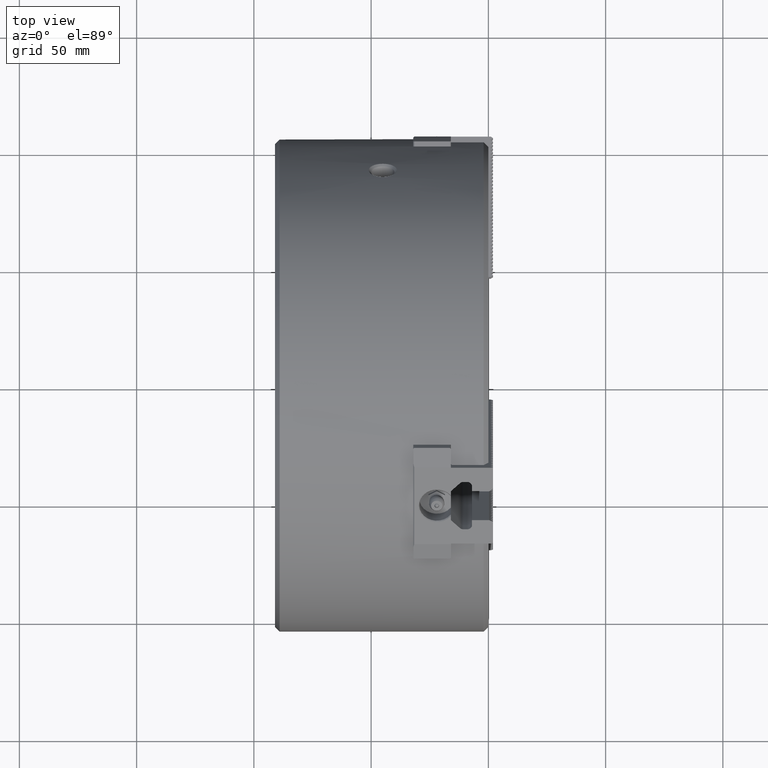
[diagram: clean part render]
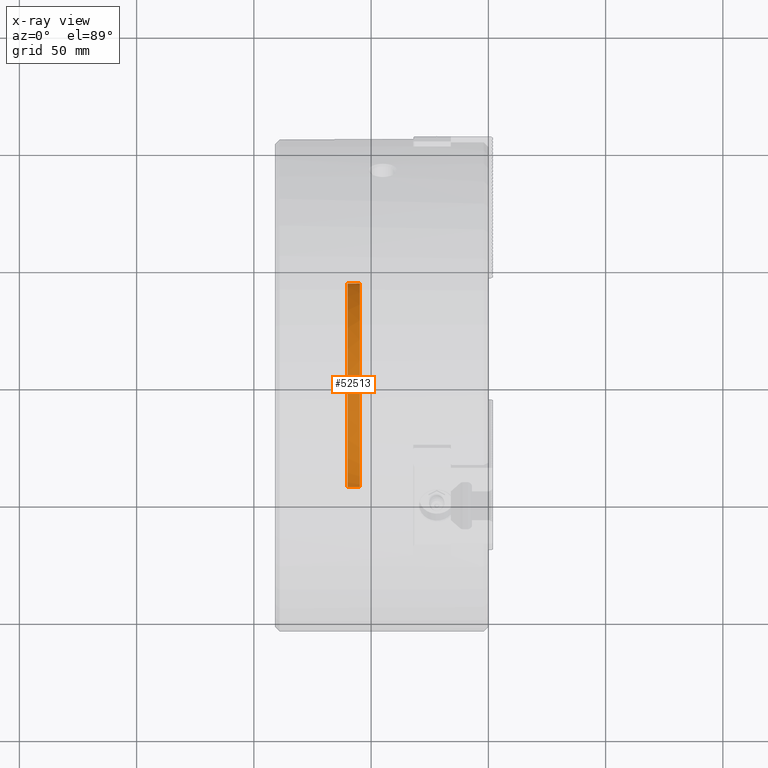
[diagram: x-ray — body ghosted, one internal face saturated and labeled with its STEP entity id]
A machine part, top view, then the same camera in x-ray: the body is ghosted and one INTERNAL B-rep face — a face not visible from any outside direction — is saturated and labeled: STEP entity #52513.
In plain terms, the highlighted cylindrical surface (bore or boss wall) has radius 43.45 mm, axis along (-1, 0, 0).
Its self-contained STEP definition (entity closure, byte-faithful):
#3036=CIRCLE('',#55441,43.45);
#3037=CIRCLE('',#55443,43.45);
#21212=ORIENTED_EDGE('',*,*,#27642,.F.);
#21213=ORIENTED_EDGE('',*,*,#27643,.T.);
#27642=EDGE_CURVE('',#31574,#31574,#3036,.T.);
#27643=EDGE_CURVE('',#31575,#31575,#3037,.T.);
#31574=VERTEX_POINT('',#78505);
#31575=VERTEX_POINT('',#78508);
#33947=EDGE_LOOP('',(#21212));
#33948=EDGE_LOOP('',(#21213));
#36254=FACE_BOUND('',#33947,.T.);
#36255=FACE_BOUND('',#33948,.T.);
#36822=CYLINDRICAL_SURFACE('',#55442,43.45);
#52513=ADVANCED_FACE('',(#36254,#36255),#36822,.T.);
#55441=AXIS2_PLACEMENT_3D('',#78504,#65000,#65001);
#55442=AXIS2_PLACEMENT_3D('',#78506,#65002,#65003);
#55443=AXIS2_PLACEMENT_3D('',#78507,#65004,#65005);
#65000=DIRECTION('',(1.,0.,0.));
#65001=DIRECTION('',(0.,0.,-1.));
#65002=DIRECTION('',(-1.,0.,0.));
#65003=DIRECTION('',(0.,0.,-1.));
#65004=DIRECTION('',(1.,0.,0.));
#65005=DIRECTION('',(0.,0.,-1.));
#78504=CARTESIAN_POINT('',(-54.8,8.05689595873153E-15,8.68240525594163E-17));
#78505=CARTESIAN_POINT('',(-54.8,8.05689595873153E-15,-43.45));
#78506=CARTESIAN_POINT('',(-46.225,8.05689595873153E-15,8.68240525594163E-17));
#78507=CARTESIAN_POINT('',(-60.,8.05689595873153E-15,8.68240525594163E-17));
#78508=CARTESIAN_POINT('',(-60.,8.05689595873153E-15,-43.45));